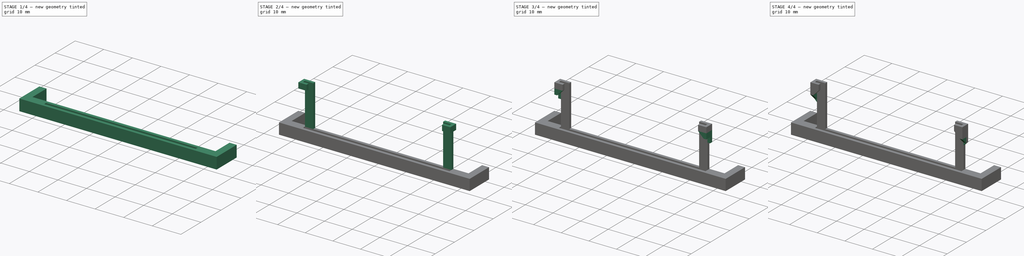
[diagram: build sequence overview — one tinted view per stage of 4, left to right]
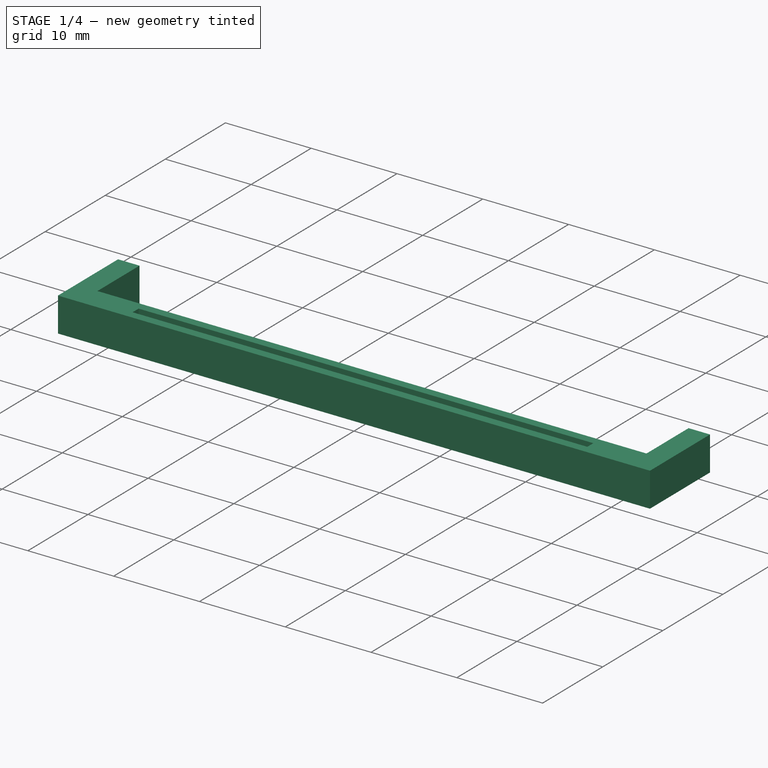
[diagram: stage 1 of 4 — iso view after this stage's code; geometry added in this stage tinted green]
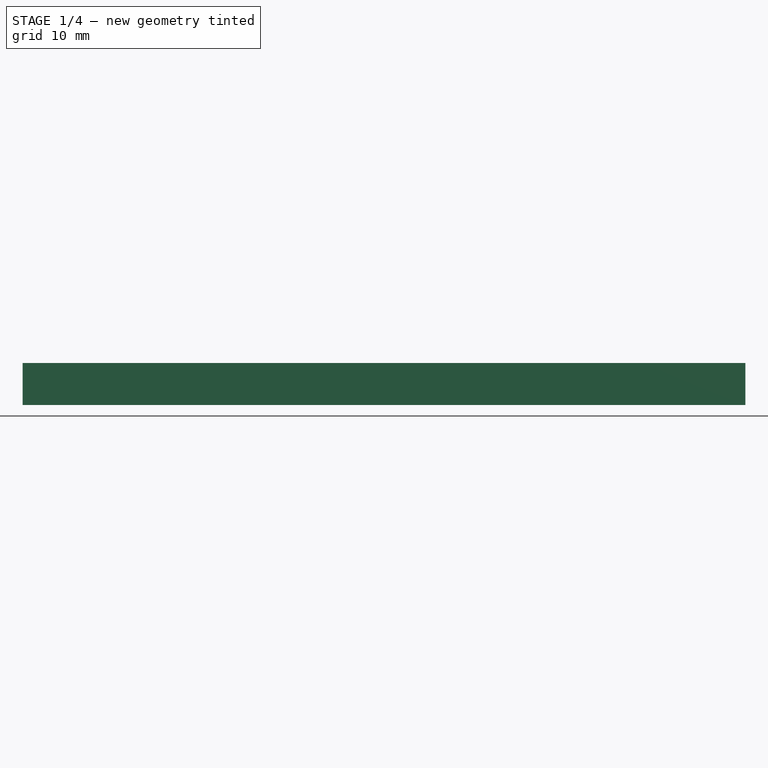
[diagram: stage 1 of 4 — front view after this stage's code; geometry added in this stage tinted green]
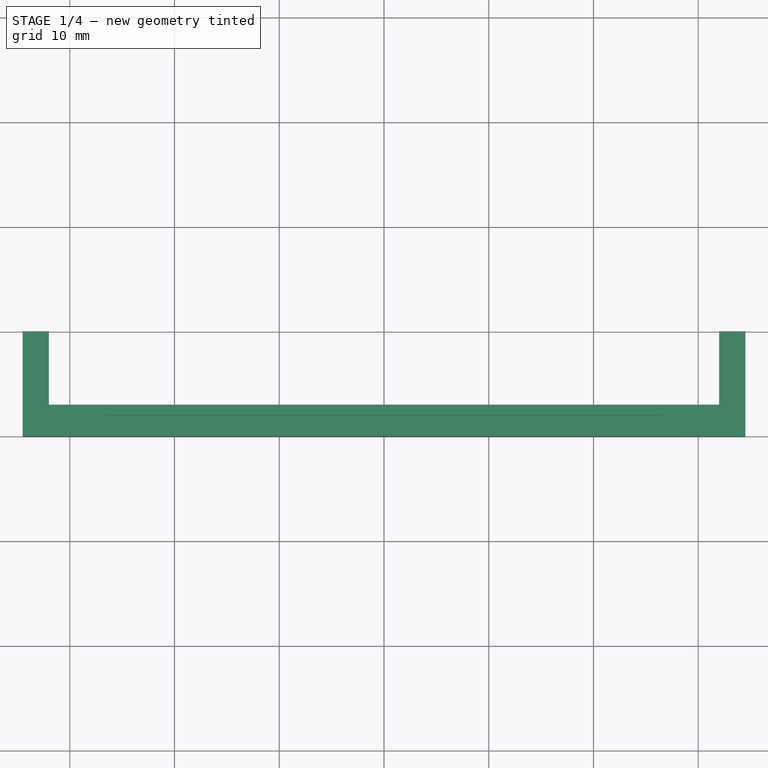
[diagram: stage 1 of 4 — top view after this stage's code; geometry added in this stage tinted green]
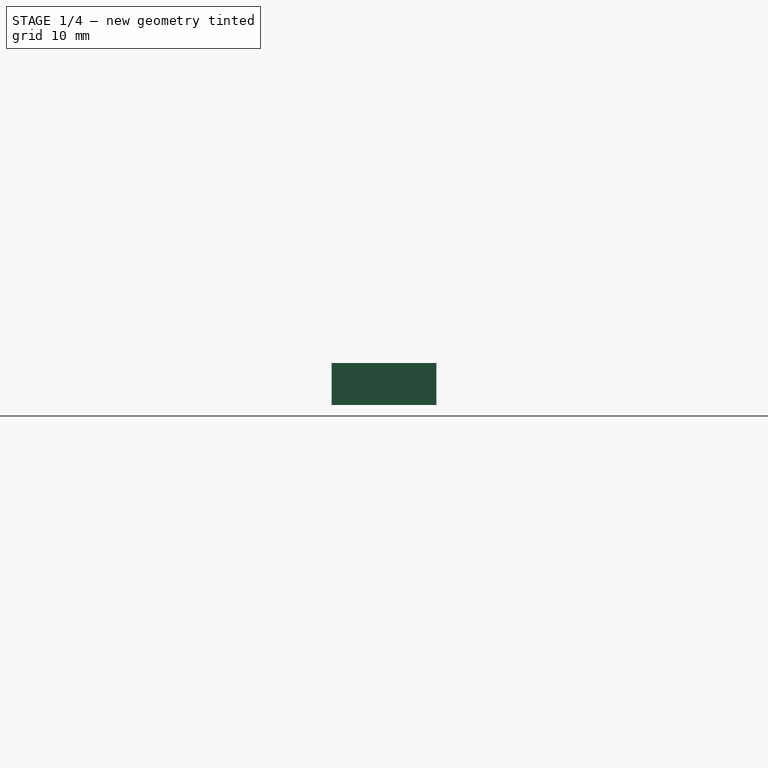
[diagram: stage 1 of 4 — right view after this stage's code; geometry added in this stage tinted green]
FCSTD DOCUMENT  (FreeCAD 0.20R29603 (Git))
Label: LockHolder
License: All rights reserved
LicenseURL: http://en.wikipedia.org/wiki/All_rights_reserved
objects: Sketcher::SketchObject×6, PartDesign::Pad×5, PartDesign::Chamfer×3, PartDesign::Pocket×1, PartDesign::Body×1
note: 25 computed .brp shape members not serialized (recipe doc carries the construction recipe); baked Part::Feature solids carry a one-line shape summary decoded from their .brp

FEATURE [Sketcher::SketchObject] Sketch
  FullyConstrained = true
  MapMode = 5
  Support = -> [XY_Plane]
  sketch-geometry (8):
    g0: LineSegment StartX=34.5 StartY=10 StartZ=0 EndX=34.5 EndY=0 EndZ=0
    g1: LineSegment StartX=34.5 StartY=0 StartZ=0 EndX=-34.5 EndY=0 EndZ=0
    g2: LineSegment StartX=-34.5 StartY=0 StartZ=0 EndX=-34.5 EndY=10 EndZ=0
    g3: LineSegment StartX=32 StartY=10 StartZ=0 EndX=32 EndY=3 EndZ=0
    g4: LineSegment StartX=32 StartY=3 StartZ=0 EndX=-32 EndY=3 EndZ=0
    g5: LineSegment StartX=-32 StartY=3 StartZ=0 EndX=-32 EndY=10 EndZ=0
    g6: LineSegment StartX=-32 StartY=10 StartZ=0 EndX=-34.5 EndY=10 EndZ=0
    g7: LineSegment StartX=32 StartY=10 StartZ=0 EndX=34.5 EndY=10 EndZ=0
  constraints (21):
    c: Coincident(g0,g1)
    c: Coincident(g1,g2)
    c: Vertical(g0)
    c: Vertical(g2)
    c: PointOnObject(g0,g-1)
    c: Symmetric(g1,g0,g-2)
    c: DistanceX(g2,g0) = 69
    c: Coincident(g3,g4)
    c: Coincident(g4,g5)
    c: Vertical(g5)
    c: Symmetric(g3,g4,g-2)
    c: Symmetric(g3,g5,g-2)
    c: Coincident(g6,g2)
    c: Coincident(g7,g0)
    c: Horizontal(g7)
    c: Equal(g6,g7)
    c: DistanceX(g5,g3) = 64
    c: Coincident(g3,g7)
    c: Coincident(g5,g6)
    c: DistanceY(g5,g5) = 7
    c: DistanceY(g2,g2) = 10
FEATURE [PartDesign::Pad] Pad
  Direction = (0,0,1)
  Length = 4
  Length2 = 10
  Profile = -> Sketch
  ReferenceAxis = -> Sketch [N_Axis]
  Type = 0
FEATURE [Sketcher::SketchObject] Sketch001
  FullyConstrained = true
  MapMode = 5
  Placement = pos=(0,0,4) rot=(0,0,1;0rad)
  Support = -> [Pad]
  sketch-geometry (4):
    g0: LineSegment StartX=-26.5 StartY=2 StartZ=0 EndX=26.5 EndY=2 EndZ=0
    g1: LineSegment StartX=26.5 StartY=2 StartZ=0 EndX=26.5 EndY=1 EndZ=0
    g2: LineSegment StartX=26.5 StartY=1 StartZ=0 EndX=-26.5 EndY=1 EndZ=0
    g3: LineSegment StartX=-26.5 StartY=1 StartZ=0 EndX=-26.5 EndY=2 EndZ=0
  constraints (10):
    c: Coincident(g0,g1)
    c: Coincident(g1,g2)
    c: Coincident(g2,g3)
    c: Vertical(g3)
    c: Symmetric(g0,g0,g-2)
    c: Coincident(g3,g0)
    c: Symmetric(g2,g1,g-2)
    c: DistanceY(g1,g1) = 1
    c: DistanceX(g0,g0) = 53
    c: DistanceY(g-1,g2) = 1
FEATURE [PartDesign::Pocket] Pocket
  BaseFeature = -> Pad
  Direction = (0,0,-1)
  Length = 1
  Length2 = 5
  Profile = -> Sketch001
  ReferenceAxis = -> Sketch001 [N_Axis]
  Type = 0
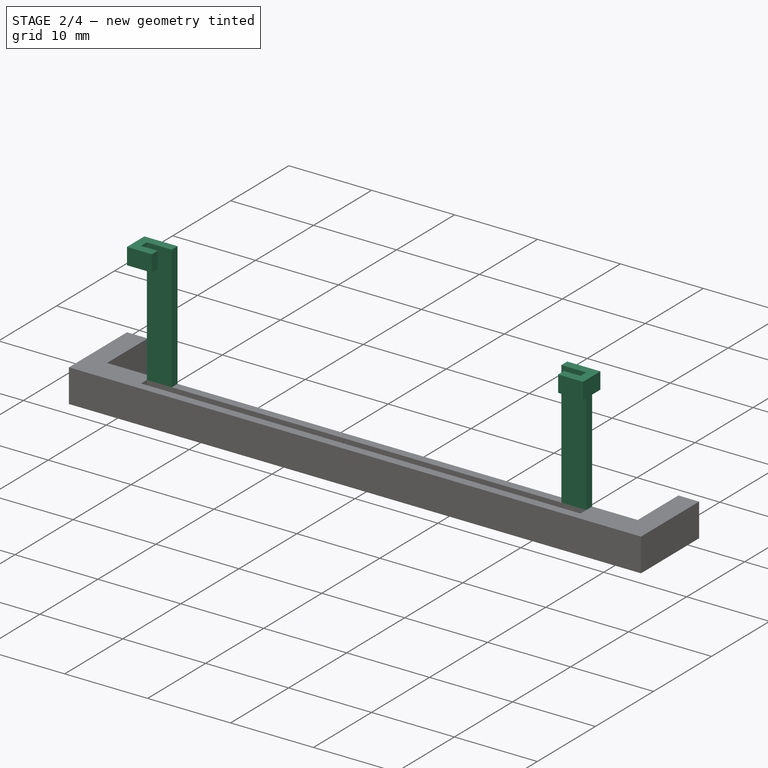
[diagram: stage 2 of 4 — iso view after this stage's code; geometry added in this stage tinted green]
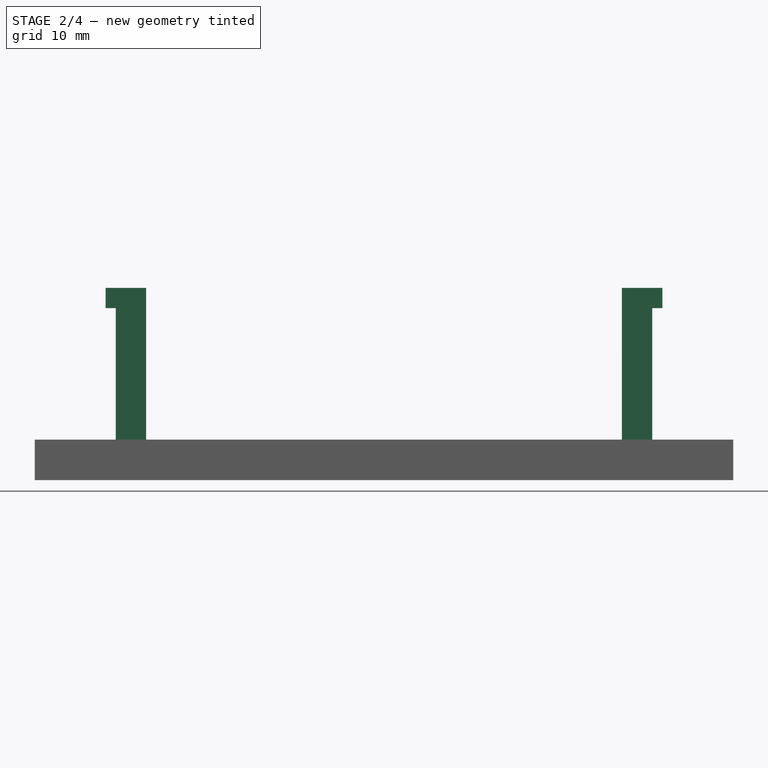
[diagram: stage 2 of 4 — front view after this stage's code; geometry added in this stage tinted green]
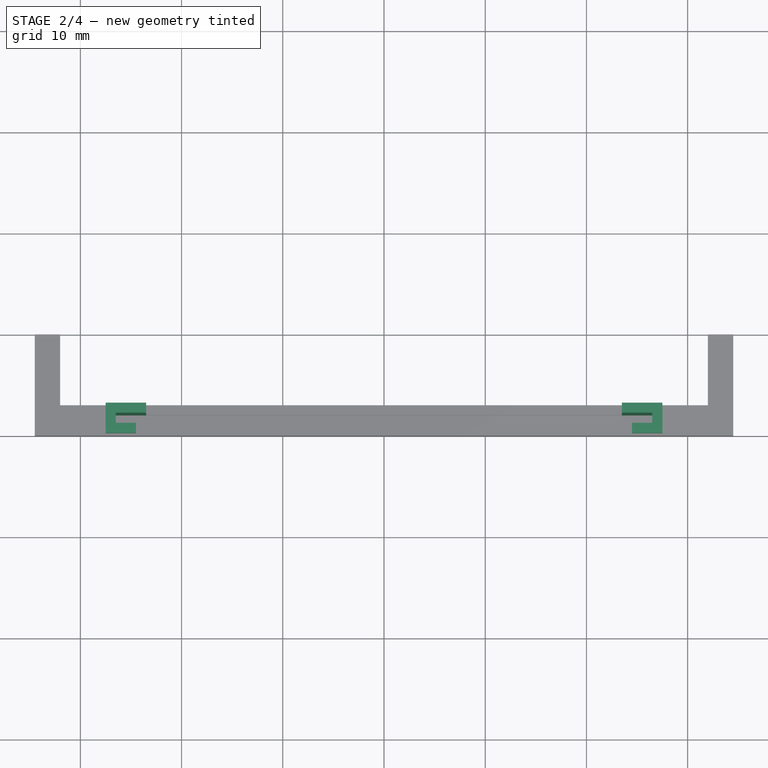
[diagram: stage 2 of 4 — top view after this stage's code; geometry added in this stage tinted green]
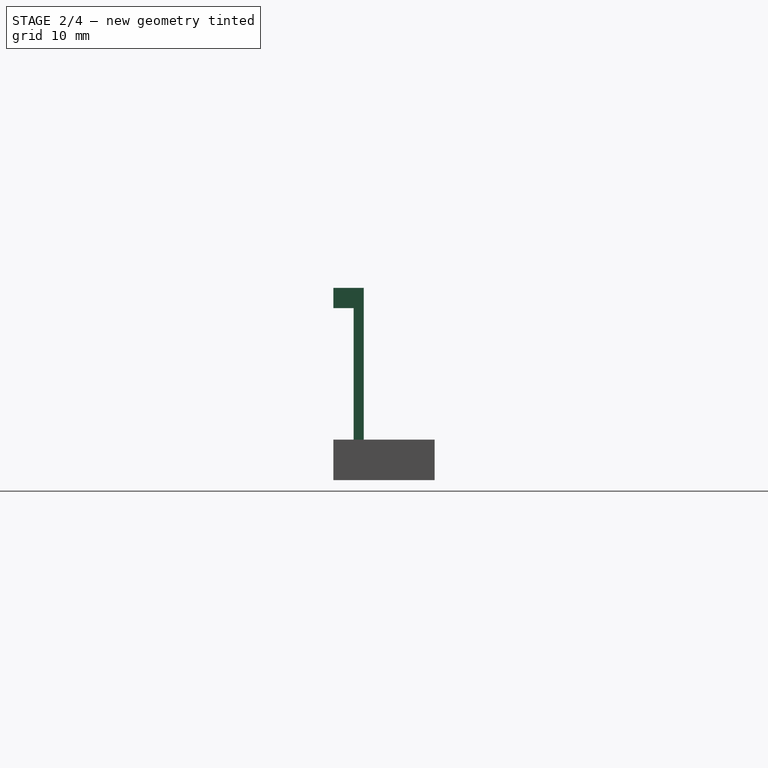
[diagram: stage 2 of 4 — right view after this stage's code; geometry added in this stage tinted green]
FEATURE [Sketcher::SketchObject] Sketch002
  FullyConstrained = true
  MapMode = 5
  Placement = pos=(0,0,4) rot=(0,0,1;0rad)
  Support = -> [Pocket]
  sketch-geometry (8):
    g0: LineSegment StartX=-26.5 StartY=2 StartZ=0 EndX=-23.5 EndY=2 EndZ=0
    g1: LineSegment StartX=-23.5 StartY=2 StartZ=0 EndX=-23.5 EndY=3 EndZ=0
    g2: LineSegment StartX=-23.5 StartY=3 StartZ=0 EndX=-26.5 EndY=3 EndZ=0
    g3: LineSegment StartX=-26.5 StartY=3 StartZ=0 EndX=-26.5 EndY=2 EndZ=0
    g4: LineSegment StartX=26.5 StartY=2 StartZ=0 EndX=23.5 EndY=2 EndZ=0
    g5: LineSegment StartX=23.5 StartY=2 StartZ=0 EndX=23.5 EndY=3 EndZ=0
    g6: LineSegment StartX=23.5 StartY=3 StartZ=0 EndX=26.5 EndY=3 EndZ=0
    g7: LineSegment StartX=26.5 StartY=3 StartZ=0 EndX=26.5 EndY=2 EndZ=0
  constraints (22):
    c: Coincident(g0,g1)
    c: Coincident(g1,g2)
    c: Coincident(g2,g3)
    c: Coincident(g3,g0)
    c: Horizontal(g0)
    c: Horizontal(g2)
    c: Vertical(g1)
    c: Vertical(g3)
    c: Coincident(g4,g5)
    c: Coincident(g5,g6)
    c: Coincident(g6,g7)
    c: Coincident(g7,g4)
    c: Horizontal(g4)
    c: Horizontal(g6)
    c: Vertical(g5)
    c: Vertical(g7)
    c: Symmetric(g2,g6,g-2)
    c: Symmetric(g0,g4,g-2)
    c: DistanceY(g7,g7) = 1
    c: DistanceX(g6,g6) = 3
    c: DistanceX(g0,g4) = 53
    c: DistanceY(g-1,g0) = 2
FEATURE [PartDesign::Pad] Pad001
  BaseFeature = -> Pocket
  Direction = (0,0,1)
  Length = 13
  Length2 = 10
  Profile = -> Sketch002
  ReferenceAxis = -> Sketch002 [N_Axis]
  Type = 0
FEATURE [Sketcher::SketchObject] Sketch003
  FullyConstrained = true
  MapMode = 5
  Placement = pos=(0,0,17) rot=(0,0,1;0rad)
  Support = -> [Pad001]
  sketch-geometry (16):
    g0: LineSegment StartX=-23.5 StartY=3 StartZ=0 EndX=-27.5 EndY=3 EndZ=0
    g1: LineSegment StartX=-27.5 StartY=3 StartZ=0 EndX=-27.5 EndY=0 EndZ=0
    g2: LineSegment StartX=-27.5 StartY=0 StartZ=0 EndX=-24.5 EndY=0 EndZ=0
    g3: LineSegment StartX=-24.5 StartY=0 StartZ=0 EndX=-24.5 EndY=1 EndZ=0
    g4: LineSegment StartX=-26.5 StartY=2 StartZ=0 EndX=-23.5 EndY=2 EndZ=0
    g5: LineSegment StartX=-24.5 StartY=1 StartZ=0 EndX=-26.5 EndY=1 EndZ=0
    g6: LineSegment StartX=-26.5 StartY=1 StartZ=0 EndX=-26.5 EndY=2 EndZ=0
    g7: LineSegment StartX=-23.5 StartY=2 StartZ=0 EndX=-23.5 EndY=3 EndZ=0
    g8: LineSegment StartX=27.5 StartY=3 StartZ=0 EndX=23.5 EndY=3 EndZ=0
    g9: LineSegment StartX=23.5 StartY=3 StartZ=0 EndX=23.5 EndY=2 EndZ=0
    g10: LineSegment StartX=24.5 StartY=0 StartZ=0 EndX=27.5 EndY=0 EndZ=0
    g11: LineSegment StartX=27.5 StartY=0 StartZ=0 EndX=27.5 EndY=3 EndZ=0
    g12: LineSegment StartX=23.5 StartY=2 StartZ=0 EndX=26.5 EndY=2 EndZ=0
    g13: LineSegment StartX=26.5 StartY=2 StartZ=0 EndX=26.5 EndY=1 EndZ=0
    g14: LineSegment StartX=26.5 StartY=1 StartZ=0 EndX=24.5 EndY=1 EndZ=0
    g15: LineSegment StartX=24.5 StartY=1 StartZ=0 EndX=24.5 EndY=0 EndZ=0
  constraints (42):
    c: Coincident(g0,g1)
    c: Coincident(g1,g2)
    c: Coincident(g2,g3)
    c: Coincident(g7,g0)
    c: Horizontal(g0)
    c: Horizontal(g2)
    c: Vertical(g1)
    c: PointOnObject(g1,g-1)
    c: Coincident(g5,g6)
    c: Coincident(g6,g4)
    c: Horizontal(g4)
    c: Horizontal(g5)
    c: Vertical(g6)
    c: Coincident(g3,g5)
    c: Coincident(g7,g4)
    c: DistanceX(g0,g0) = 4
    c: DistanceY(g1,g1) = 3
    c: Vertical(g7)
    c: Vertical(g3)
    c: Equal(g7,g3)
    c: DistanceY(g6,g6) = 1
    c: DistanceX(g2,g2) = 3
    c: Coincident(g8,g9)
    c: Coincident(g15,g10)
    c: Coincident(g10,g11)
    c: Coincident(g11,g8)
    c: Coincident(g12,g13)
    c: Coincident(g13,g14)
    c: Coincident(g9,g12)
    c: Coincident(g15,g14)
    c: Symmetric(g0,g8,g-2)
    c: Symmetric(g8,g0,g-2)
    c: Vertical(g9)
    c: Vertical(g15)
    c: Symmetric(g12,g4,g-2)
    c: Horizontal(g12)
    c: Horizontal(g14)
    c: Symmetric(g10,g2,g-2)
    c: Symmetric(g1,g10,g-2)
    c: DistanceX(g5,g13) = 53
    c: DistanceX(g12,g12) = 3
    c: Symmetric(g13,g5,g-2)
FEATURE [PartDesign::Pad] Pad002
  BaseFeature = -> Pad001
  Direction = (0,0,1)
  Length = 2
  Length2 = 10
  Profile = -> Sketch003
  ReferenceAxis = -> Sketch003 [N_Axis]
  Type = 0
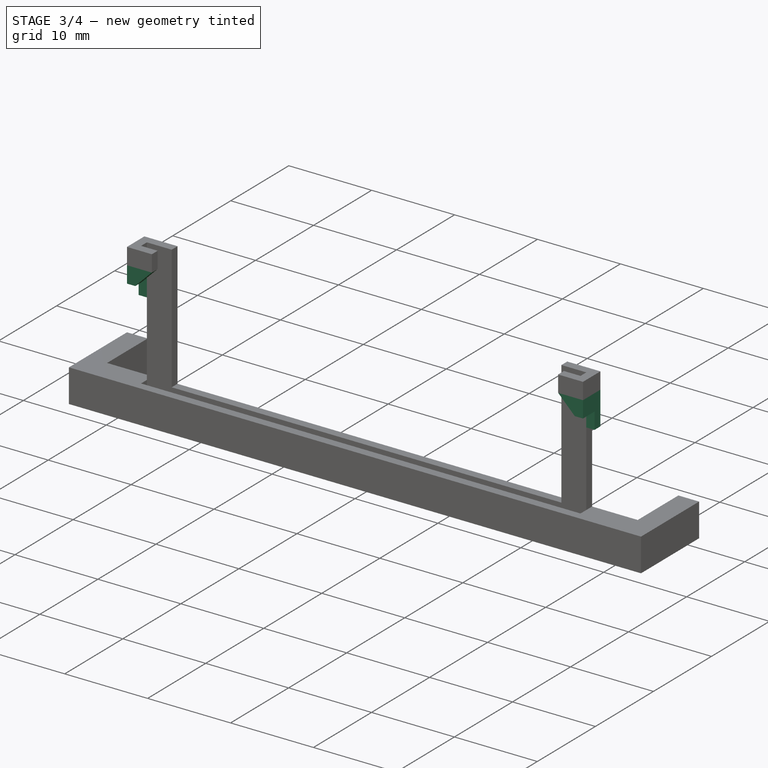
[diagram: stage 3 of 4 — iso view after this stage's code; geometry added in this stage tinted green]
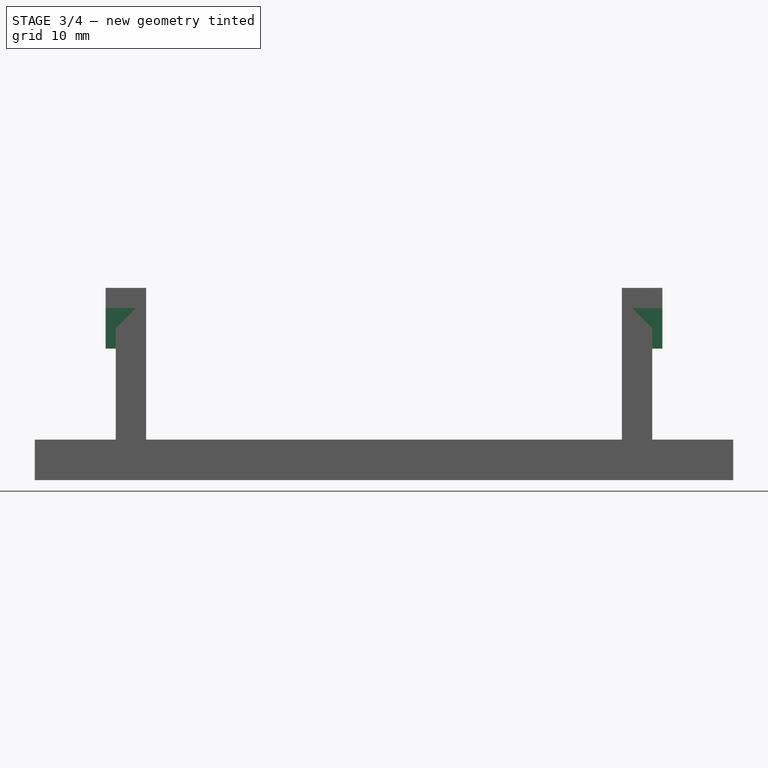
[diagram: stage 3 of 4 — front view after this stage's code; geometry added in this stage tinted green]
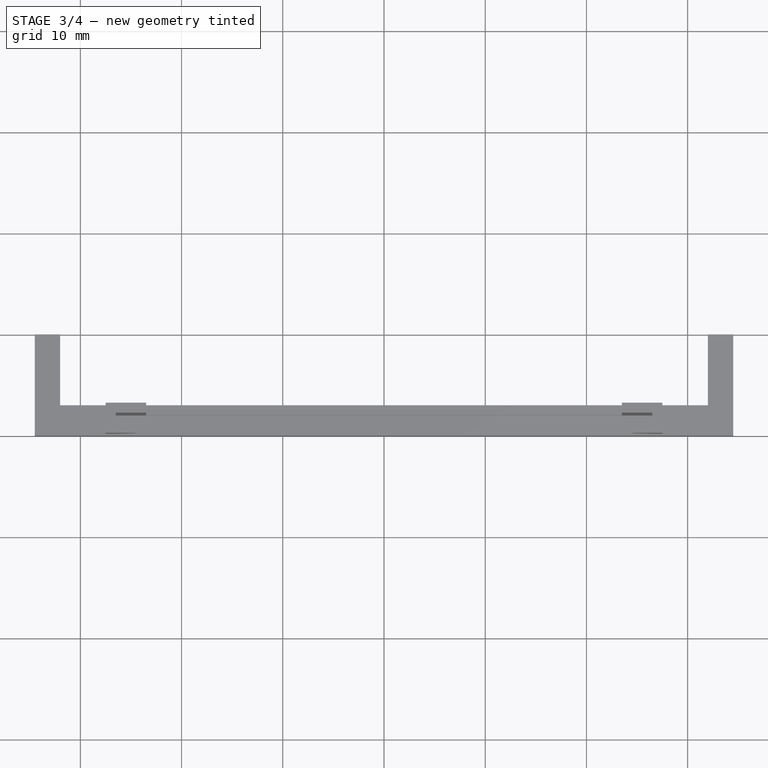
[diagram: stage 3 of 4 — top view after this stage's code; geometry added in this stage tinted green]
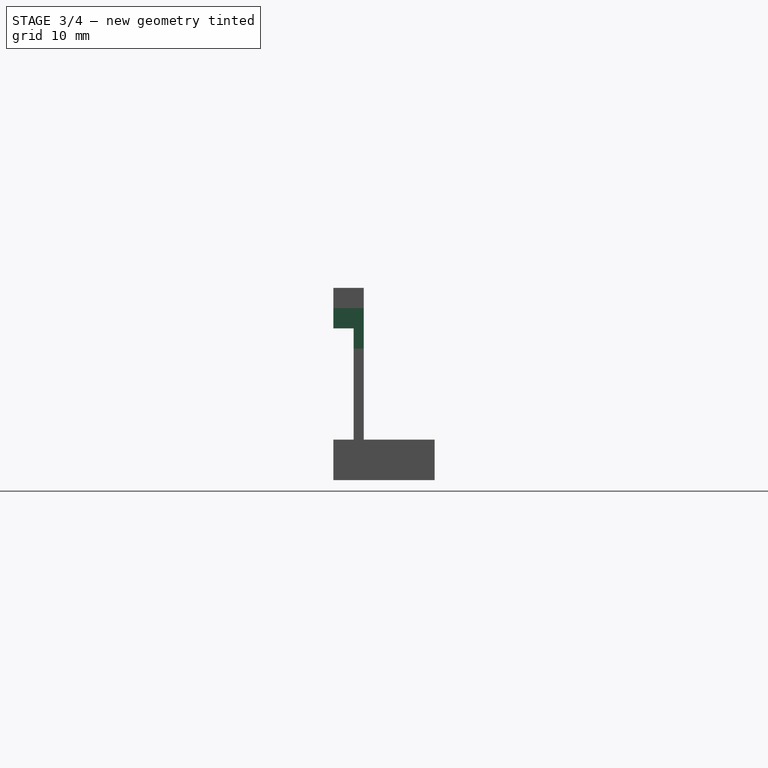
[diagram: stage 3 of 4 — right view after this stage's code; geometry added in this stage tinted green]
FEATURE [Sketcher::SketchObject] Sketch004
  FullyConstrained = true
  MapMode = 5
  Placement = pos=(0,0,17) rot=(1,0,0;3.14159rad)
  Support = -> [Pad002]
  sketch-geometry (8):
    g0: LineSegment StartX=-27.5 StartY=0 StartZ=0 EndX=-26.5 EndY=0 EndZ=0
    g1: LineSegment StartX=-26.5 StartY=0 StartZ=0 EndX=-26.5 EndY=-3 EndZ=0
    g2: LineSegment StartX=-26.5 StartY=-3 StartZ=0 EndX=-27.5 EndY=-3 EndZ=0
    g3: LineSegment StartX=-27.5 StartY=-3 StartZ=0 EndX=-27.5 EndY=0 EndZ=0
    g4: LineSegment StartX=27.5 StartY=-3 StartZ=0 EndX=26.5 EndY=-3 EndZ=0
    g5: LineSegment StartX=26.5 StartY=-3 StartZ=0 EndX=26.5 EndY=0 EndZ=0
    g6: LineSegment StartX=26.5 StartY=0 StartZ=0 EndX=27.5 EndY=0 EndZ=0
    g7: LineSegment StartX=27.5 StartY=0 StartZ=0 EndX=27.5 EndY=-3 EndZ=0
  constraints (22):
    c: Coincident(g0,g1)
    c: Coincident(g1,g2)
    c: Coincident(g2,g3)
    c: Coincident(g3,g0)
    c: Horizontal(g0)
    c: Horizontal(g2)
    c: Vertical(g1)
    c: Vertical(g3)
    c: PointOnObject(g0,g-1)
    c: Coincident(g4,g5)
    c: Coincident(g5,g6)
    c: Coincident(g6,g7)
    c: Coincident(g7,g4)
    c: Horizontal(g4)
    c: Horizontal(g6)
    c: Vertical(g5)
    c: Vertical(g7)
    c: Symmetric(g6,g0,g-2)
    c: Symmetric(g4,g1,g-2)
    c: DistanceX(g0,g5) = 53
    c: DistanceX(g0,g0) = 1
    c: DistanceY(g7,g7) = 3
FEATURE [PartDesign::Pad] Pad003
  BaseFeature = -> Pad002
  Direction = (0,0,-1)
  Length = 2
  Length2 = 10
  Profile = -> Sketch004
  ReferenceAxis = -> Sketch004 [N_Axis]
  Type = 0
FEATURE [PartDesign::Chamfer] Chamfer
  Angle = 45
  Base = -> Pad003 [Edge85,Edge95]
  BaseFeature = -> Pad003
  ChamferType = 0
  FlipDirection = false
  Size = 1.99
  Size2 = 1
  SupportTransform = false
  UseAllEdges = false
FEATURE [Sketcher::SketchObject] Sketch005
  FullyConstrained = true
  MapMode = 5
  Placement = pos=(0,0,15) rot=(1,0,0;3.14159rad)
  Support = -> [Chamfer]
  sketch-geometry (8):
    g0: LineSegment StartX=-26.5 StartY=-2 StartZ=0 EndX=-27.5 EndY=-2 EndZ=0
    g1: LineSegment StartX=-27.5 StartY=-2 StartZ=0 EndX=-27.5 EndY=-3 EndZ=0
    g2: LineSegment StartX=-27.5 StartY=-3 StartZ=0 EndX=-26.5 EndY=-3 EndZ=0
    g3: LineSegment StartX=-26.5 StartY=-3 StartZ=0 EndX=-26.5 EndY=-2 EndZ=0
    g4: LineSegment StartX=26.5 StartY=-2 StartZ=0 EndX=27.5 EndY=-2 EndZ=0
    g5: LineSegment StartX=27.5 StartY=-2 StartZ=0 EndX=27.5 EndY=-3 EndZ=0
    g6: LineSegment StartX=27.5 StartY=-3 StartZ=0 EndX=26.5 EndY=-3 EndZ=0
    g7: LineSegment StartX=26.5 StartY=-3 StartZ=0 EndX=26.5 EndY=-2 EndZ=0
  constraints (22):
    c: Coincident(g0,g1)
    c: Coincident(g1,g2)
    c: Coincident(g2,g3)
    c: Coincident(g3,g0)
    c: Horizontal(g0)
    c: Horizontal(g2)
    c: Vertical(g1)
    c: Vertical(g3)
    c: Coincident(g4,g5)
    c: Coincident(g5,g6)
    c: Coincident(g6,g7)
    c: Coincident(g7,g4)
    c: Horizontal(g4)
    c: Horizontal(g6)
    c: Vertical(g5)
    c: Vertical(g7)
    c: Symmetric(g4,g0,g-2)
    c: Symmetric(g6,g2,g-2)
    c: DistanceX(g2,g2) = 1
    c: DistanceY(g1,g1) = 1
    c: DistanceY(g0,g-1) = 2
    c: DistanceX(g0,g4) = 53
FEATURE [PartDesign::Pad] Pad004
  BaseFeature = -> Chamfer
  Direction = (0,0,-1)
  Length = 2
  Length2 = 10
  Profile = -> Sketch005
  ReferenceAxis = -> Sketch005 [N_Axis]
  Type = 0
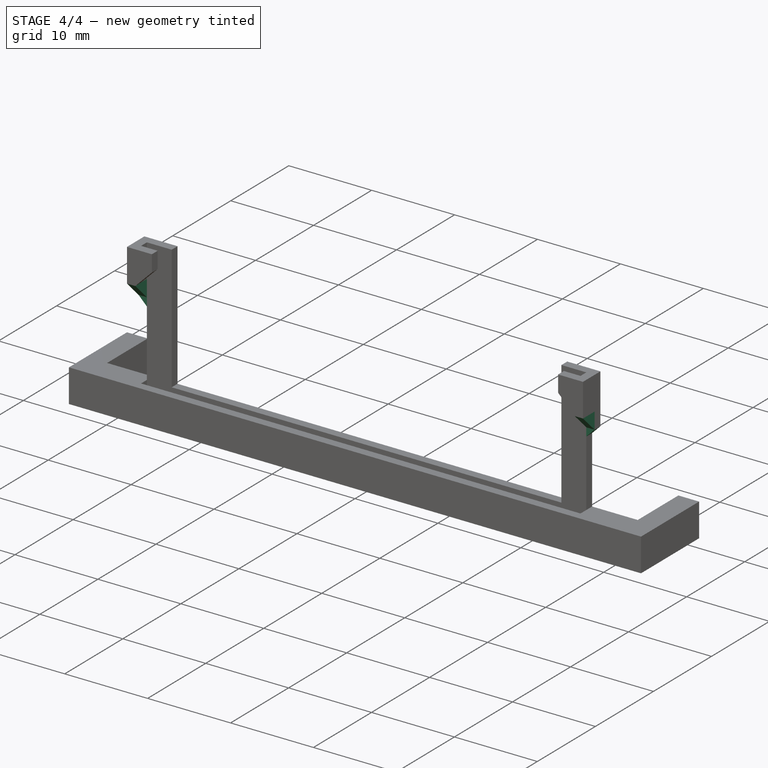
[diagram: stage 4 of 4 — iso view after this stage's code; geometry added in this stage tinted green]
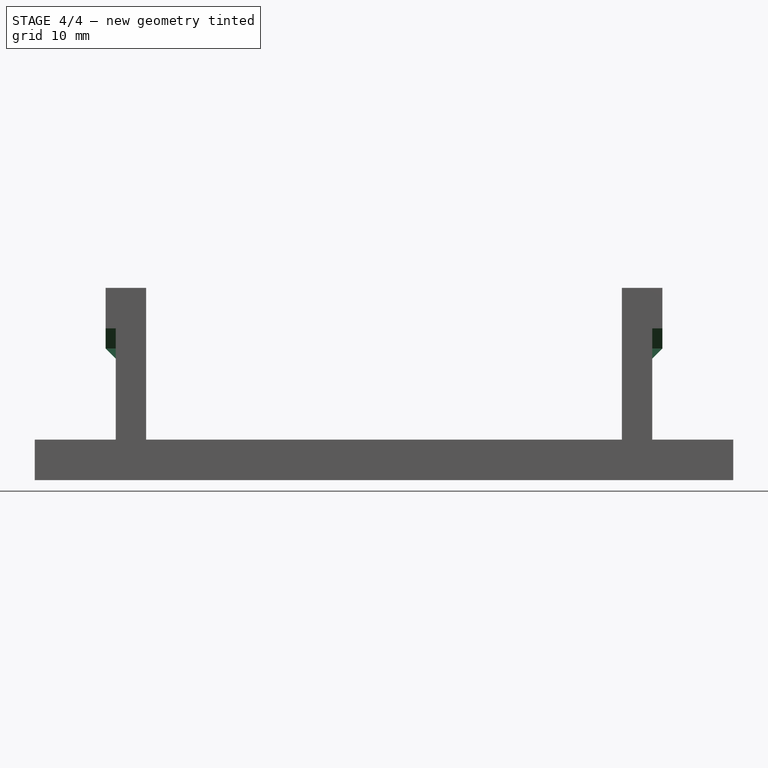
[diagram: stage 4 of 4 — front view after this stage's code; geometry added in this stage tinted green]
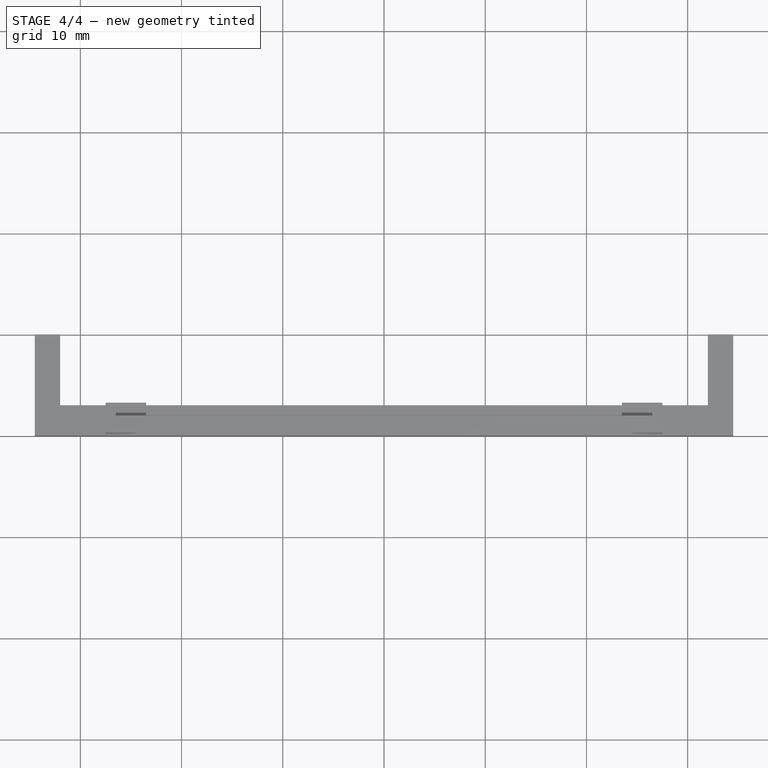
[diagram: stage 4 of 4 — top view after this stage's code; geometry added in this stage tinted green]
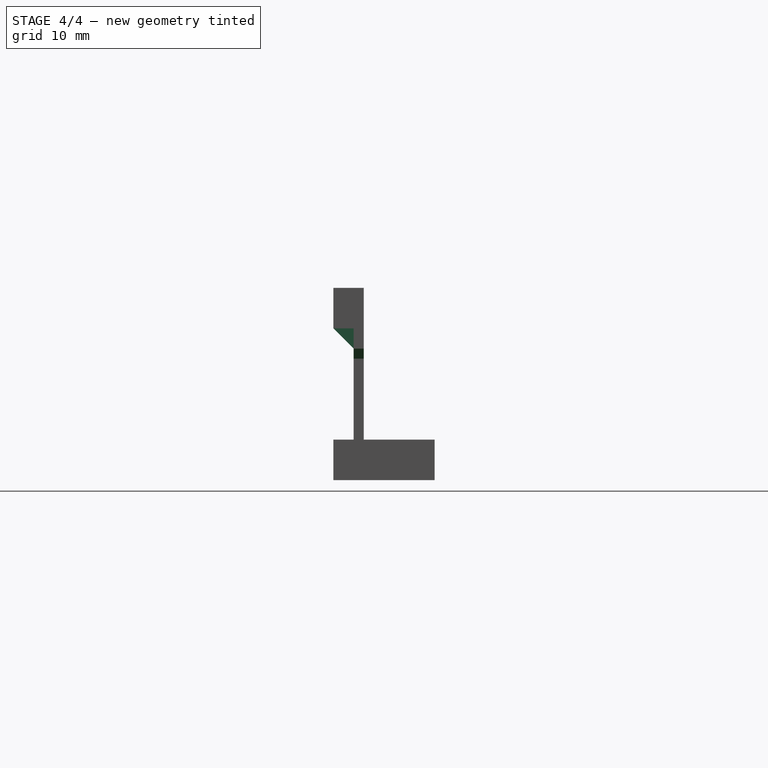
[diagram: stage 4 of 4 — right view after this stage's code; geometry added in this stage tinted green]
FEATURE [PartDesign::Chamfer] Chamfer001
  Angle = 45
  Base = -> Pad004 [Edge112,Edge15]
  BaseFeature = -> Pad004
  ChamferType = 0
  FlipDirection = false
  Size = 1.99
  Size2 = 1
  SupportTransform = false
  UseAllEdges = false
FEATURE [PartDesign::Chamfer] Chamfer002
  Angle = 45
  Base = -> Chamfer001 [Edge44,Edge112]
  BaseFeature = -> Chamfer001
  ChamferType = 0
  FlipDirection = false
  Size = 0.99
  Size2 = 1
  SupportTransform = false
  UseAllEdges = false
FEATURE [PartDesign::Body] Body
  Group = -> [Sketch,Pad,Sketch001,Pocket,Sketch002,Pad001,Sketch003,Pad002,Sketch004,Pad003,Chamfer,Sketch005,Pad004,Chamfer001,Chamfer002]
  Origin = -> Origin
  Tip = -> Chamfer002
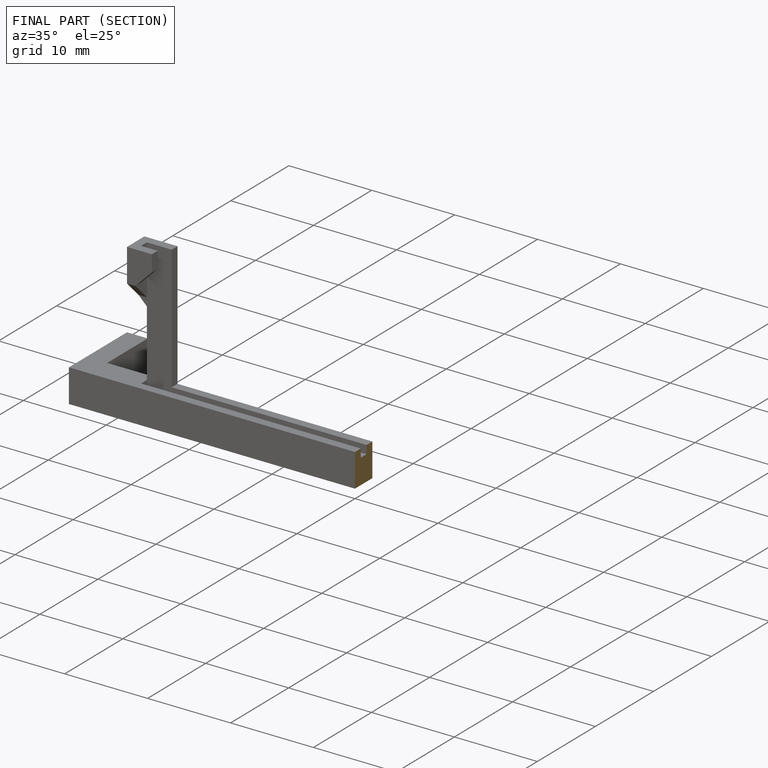
[diagram: finished part — half-section view (interior)]
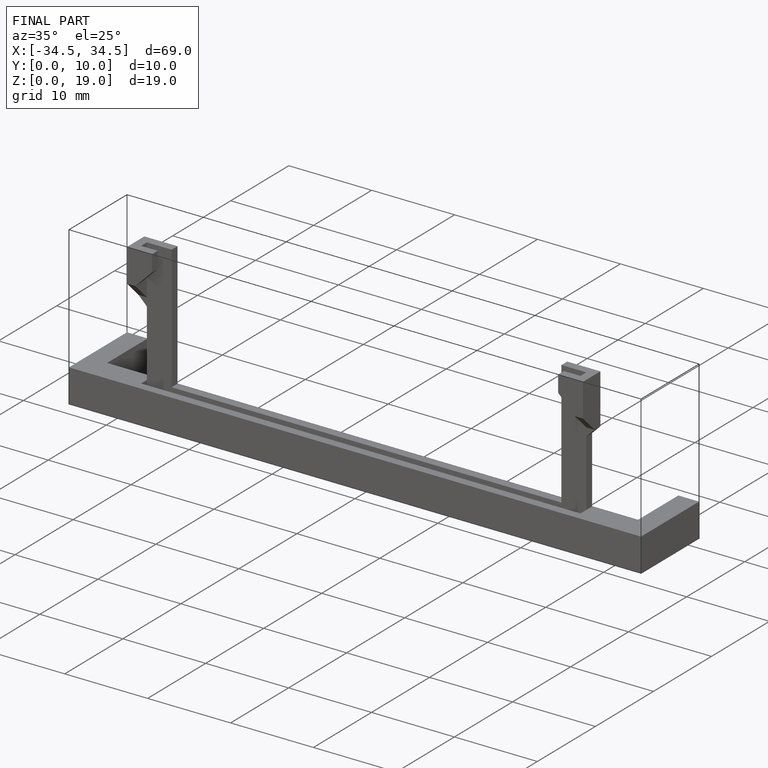
[diagram: finished part — iso view with bounding-box wireframe]
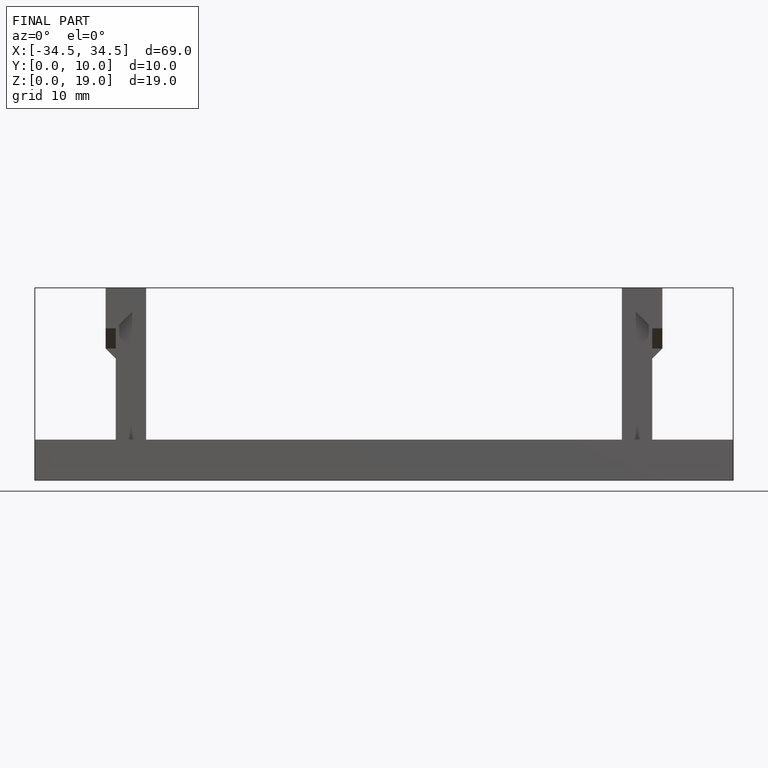
[diagram: finished part — front view with bounding-box wireframe]
